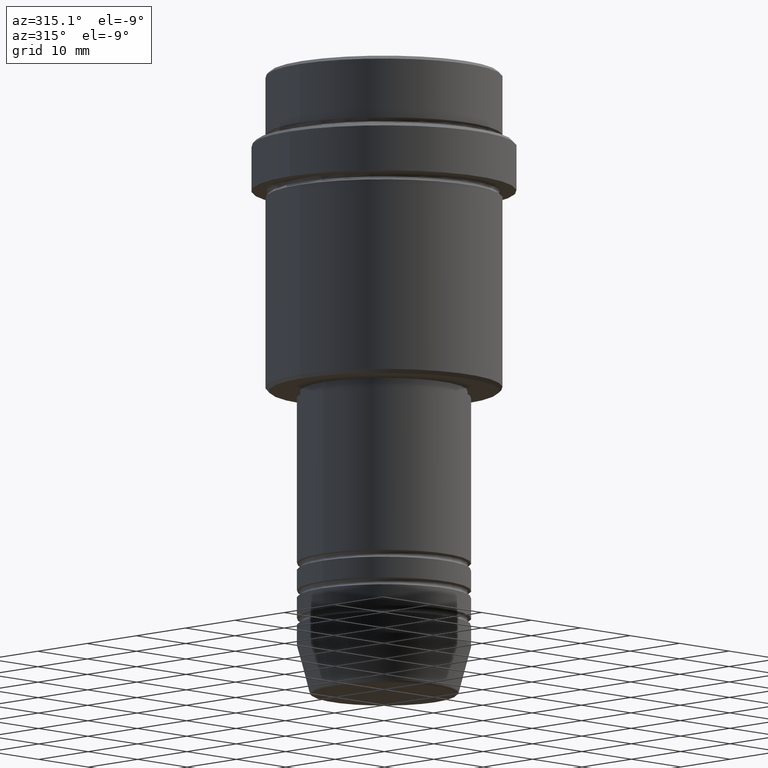
[diagram: clean part render]
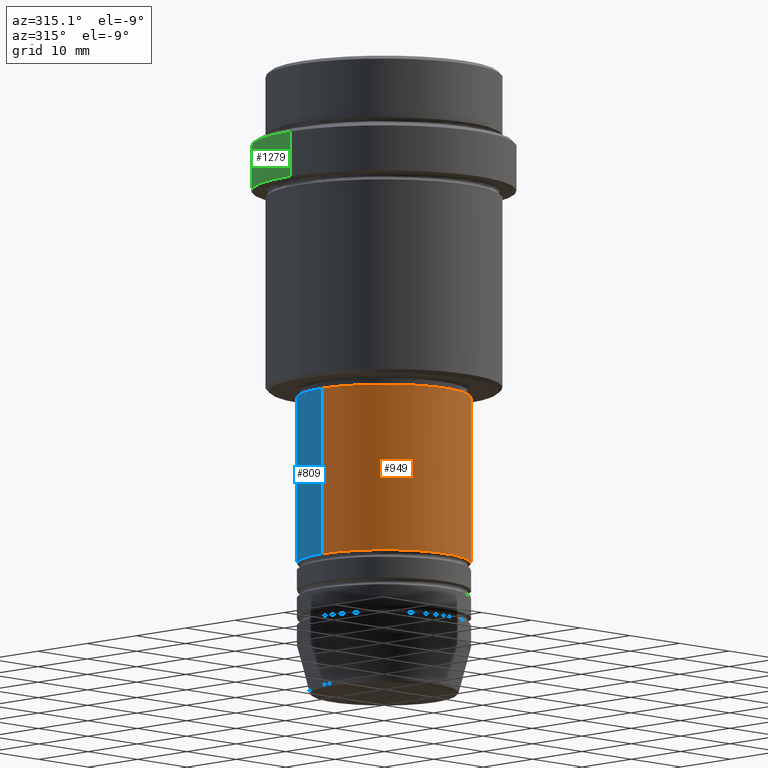
[diagram: same view with three faces highlighted in distinct colors, each labeled with its STEP entity id]
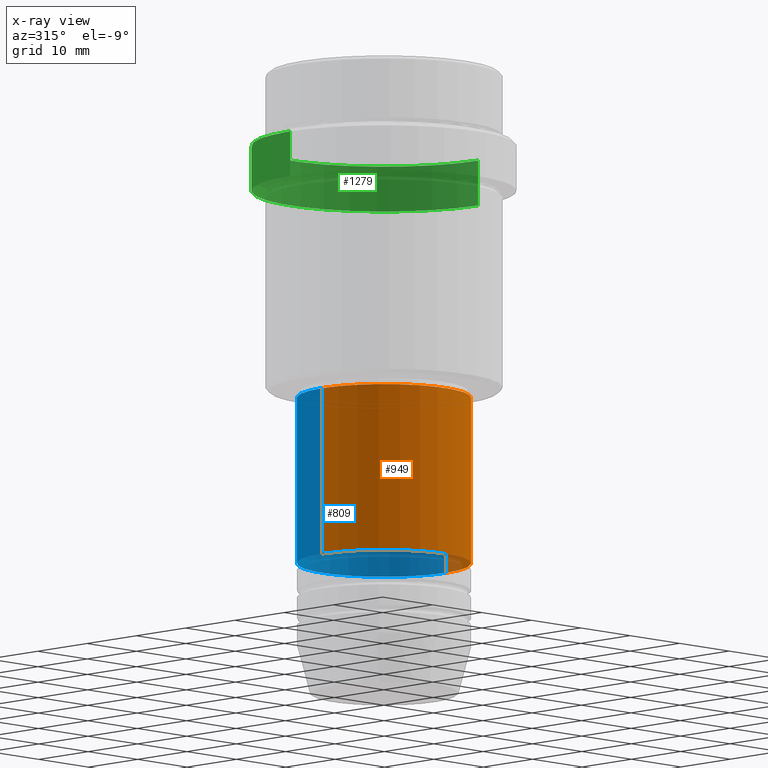
[diagram: x-ray of the same camera — body ghosted, the three highlighted faces saturated]
A machine part, auxiliary view with three faces highlighted in distinct colors.
The next image is the same camera in x-ray (body ghosted, the three faces saturated) — at least one of them is partly hidden behind the body in this view.
Their STEP definitions:

[orange] entity #949 — the highlighted cylindrical surface (partial cylindrical patch) has radius 12.5 mm, axis along (-0, -0, 1).
#62 = DIRECTION ( 'NONE',  ( -0.000000000000000000, -0.000000000000000000, 1.000000000000000000 ) ) ;
#78 = FACE_OUTER_BOUND ( 'NONE', #105, .T. ) ;
#105 = EDGE_LOOP ( 'NONE', ( #1404, #855, #1394, #652 ) ) ;
#187 = AXIS2_PLACEMENT_3D ( 'NONE', #577, #1366, #787 ) ;
#270 = CARTESIAN_POINT ( 'NONE',  ( -12.50000000000000000, 1.530808498934191521E-15, -70.99999999999990052 ) ) ;
#279 = AXIS2_PLACEMENT_3D ( 'NONE', #619, #62, #948 ) ;
#360 = CARTESIAN_POINT ( 'NONE',  ( 12.50000000000000000, 0.000000000000000000, 0.000000000000000000 ) ) ;
#399 = CARTESIAN_POINT ( 'NONE',  ( -12.50000000000000000, 1.530808498934191521E-15, 0.000000000000000000 ) ) ;
#405 = LINE ( 'NONE', #399, #708 ) ;
#491 = DIRECTION ( 'NONE',  ( -0.000000000000000000, -0.000000000000000000, 1.000000000000000000 ) ) ;
#498 = CARTESIAN_POINT ( 'NONE',  ( 0.000000000000000000, 0.000000000000000000, -47.00000000000000000 ) ) ;
#502 = EDGE_CURVE ( 'NONE', #1334, #847, #405, .T. ) ;
#570 = AXIS2_PLACEMENT_3D ( 'NONE', #498, #1154, #1035 ) ;
#577 = CARTESIAN_POINT ( 'NONE',  ( 0.000000000000000000, 0.000000000000000000, -70.99999999999990052 ) ) ;
#586 = VERTEX_POINT ( 'NONE', #891 ) ;
#619 = CARTESIAN_POINT ( 'NONE',  ( 0.000000000000000000, 0.000000000000000000, 0.000000000000000000 ) ) ;
#652 = ORIENTED_EDGE ( 'NONE', *, *, #1003, .F. ) ;
#700 = LINE ( 'NONE', #360, #1173 ) ;
#708 = VECTOR ( 'NONE', #727, 1000.000000000000000 ) ;
#727 = DIRECTION ( 'NONE',  ( -0.000000000000000000, -0.000000000000000000, 1.000000000000000000 ) ) ;
#787 = DIRECTION ( 'NONE',  ( 1.000000000000000000, 0.000000000000000000, 0.000000000000000000 ) ) ;
#847 = VERTEX_POINT ( 'NONE', #1176 ) ;
#855 = ORIENTED_EDGE ( 'NONE', *, *, #1321, .T. ) ;
#891 = CARTESIAN_POINT ( 'NONE',  ( 12.50000000000000000, 0.000000000000000000, -70.99999999999990052 ) ) ;
#948 = DIRECTION ( 'NONE',  ( 1.000000000000000000, 0.000000000000000000, 0.000000000000000000 ) ) ;
#949 = ADVANCED_FACE ( 'NONE', ( #78 ), #1158, .T. ) ;
#1003 = EDGE_CURVE ( 'NONE', #847, #1071, #1081, .T. ) ;
#1035 = DIRECTION ( 'NONE',  ( 1.000000000000000000, 0.000000000000000000, 0.000000000000000000 ) ) ;
#1046 = CARTESIAN_POINT ( 'NONE',  ( 12.50000000000000000, 0.000000000000000000, -47.00000000000000000 ) ) ;
#1071 = VERTEX_POINT ( 'NONE', #1046 ) ;
#1081 = CIRCLE ( 'NONE', #570, 12.50000000000000000 ) ;
#1093 = EDGE_CURVE ( 'NONE', #586, #1071, #700, .T. ) ;
#1154 = DIRECTION ( 'NONE',  ( -0.000000000000000000, -0.000000000000000000, 1.000000000000000000 ) ) ;
#1158 = CYLINDRICAL_SURFACE ( 'NONE', #279, 12.50000000000000000 ) ;
#1173 = VECTOR ( 'NONE', #491, 1000.000000000000000 ) ;
#1176 = CARTESIAN_POINT ( 'NONE',  ( -12.50000000000000000, 1.530808498934191521E-15, -47.00000000000000000 ) ) ;
#1237 = CIRCLE ( 'NONE', #187, 12.50000000000000000 ) ;
#1321 = EDGE_CURVE ( 'NONE', #1334, #586, #1237, .T. ) ;
#1334 = VERTEX_POINT ( 'NONE', #270 ) ;
#1366 = DIRECTION ( 'NONE',  ( -0.000000000000000000, -0.000000000000000000, 1.000000000000000000 ) ) ;
#1394 = ORIENTED_EDGE ( 'NONE', *, *, #1093, .T. ) ;
#1404 = ORIENTED_EDGE ( 'NONE', *, *, #502, .F. ) ;

[blue] entity #809 — the highlighted cylindrical surface (partial cylindrical patch) has radius 12.5 mm, axis along (-0, -0, 1).
#102 = DIRECTION ( 'NONE',  ( 1.000000000000000000, 0.000000000000000000, 0.000000000000000000 ) ) ;
#151 = CARTESIAN_POINT ( 'NONE',  ( 0.000000000000000000, 0.000000000000000000, 0.000000000000000000 ) ) ;
#223 = EDGE_CURVE ( 'NONE', #1071, #847, #1283, .T. ) ;
#270 = CARTESIAN_POINT ( 'NONE',  ( -12.50000000000000000, 1.530808498934191521E-15, -70.99999999999990052 ) ) ;
#332 = CARTESIAN_POINT ( 'NONE',  ( 0.000000000000000000, 0.000000000000000000, -47.00000000000000000 ) ) ;
#360 = CARTESIAN_POINT ( 'NONE',  ( 12.50000000000000000, 0.000000000000000000, 0.000000000000000000 ) ) ;
#363 = CARTESIAN_POINT ( 'NONE',  ( 0.000000000000000000, 0.000000000000000000, -70.99999999999990052 ) ) ;
#371 = AXIS2_PLACEMENT_3D ( 'NONE', #363, #696, #793 ) ;
#386 = DIRECTION ( 'NONE',  ( -0.000000000000000000, -0.000000000000000000, 1.000000000000000000 ) ) ;
#399 = CARTESIAN_POINT ( 'NONE',  ( -12.50000000000000000, 1.530808498934191521E-15, 0.000000000000000000 ) ) ;
#405 = LINE ( 'NONE', #399, #708 ) ;
#429 = EDGE_LOOP ( 'NONE', ( #566, #1131, #690, #626 ) ) ;
#485 = CIRCLE ( 'NONE', #371, 12.50000000000000000 ) ;
#491 = DIRECTION ( 'NONE',  ( -0.000000000000000000, -0.000000000000000000, 1.000000000000000000 ) ) ;
#502 = EDGE_CURVE ( 'NONE', #1334, #847, #405, .T. ) ;
#553 = AXIS2_PLACEMENT_3D ( 'NONE', #151, #386, #1025 ) ;
#566 = ORIENTED_EDGE ( 'NONE', *, *, #735, .T. ) ;
#586 = VERTEX_POINT ( 'NONE', #891 ) ;
#588 = FACE_OUTER_BOUND ( 'NONE', #429, .T. ) ;
#626 = ORIENTED_EDGE ( 'NONE', *, *, #1093, .F. ) ;
#647 = DIRECTION ( 'NONE',  ( -0.000000000000000000, -0.000000000000000000, 1.000000000000000000 ) ) ;
#690 = ORIENTED_EDGE ( 'NONE', *, *, #223, .F. ) ;
#696 = DIRECTION ( 'NONE',  ( -0.000000000000000000, -0.000000000000000000, 1.000000000000000000 ) ) ;
#700 = LINE ( 'NONE', #360, #1173 ) ;
#708 = VECTOR ( 'NONE', #727, 1000.000000000000000 ) ;
#727 = DIRECTION ( 'NONE',  ( -0.000000000000000000, -0.000000000000000000, 1.000000000000000000 ) ) ;
#735 = EDGE_CURVE ( 'NONE', #586, #1334, #485, .T. ) ;
#793 = DIRECTION ( 'NONE',  ( 1.000000000000000000, 0.000000000000000000, 0.000000000000000000 ) ) ;
#809 = ADVANCED_FACE ( 'NONE', ( #588 ), #1005, .T. ) ;
#847 = VERTEX_POINT ( 'NONE', #1176 ) ;
#891 = CARTESIAN_POINT ( 'NONE',  ( 12.50000000000000000, 0.000000000000000000, -70.99999999999990052 ) ) ;
#915 = AXIS2_PLACEMENT_3D ( 'NONE', #332, #647, #102 ) ;
#1005 = CYLINDRICAL_SURFACE ( 'NONE', #553, 12.50000000000000000 ) ;
#1025 = DIRECTION ( 'NONE',  ( 1.000000000000000000, 0.000000000000000000, 0.000000000000000000 ) ) ;
#1046 = CARTESIAN_POINT ( 'NONE',  ( 12.50000000000000000, 0.000000000000000000, -47.00000000000000000 ) ) ;
#1071 = VERTEX_POINT ( 'NONE', #1046 ) ;
#1093 = EDGE_CURVE ( 'NONE', #586, #1071, #700, .T. ) ;
#1131 = ORIENTED_EDGE ( 'NONE', *, *, #502, .T. ) ;
#1173 = VECTOR ( 'NONE', #491, 1000.000000000000000 ) ;
#1176 = CARTESIAN_POINT ( 'NONE',  ( -12.50000000000000000, 1.530808498934191521E-15, -47.00000000000000000 ) ) ;
#1283 = CIRCLE ( 'NONE', #915, 12.50000000000000000 ) ;
#1334 = VERTEX_POINT ( 'NONE', #270 ) ;

[green] entity #1279 — the highlighted cylindrical surface (partial cylindrical patch) has radius 19 mm, axis along (-0, -0, 1).
#41 = VERTEX_POINT ( 'NONE', #625 ) ;
#46 = VECTOR ( 'NONE', #1044, 1000.000000000000000 ) ;
#133 = ORIENTED_EDGE ( 'NONE', *, *, #638, .T. ) ;
#161 = AXIS2_PLACEMENT_3D ( 'NONE', #237, #225, #1089 ) ;
#202 = VERTEX_POINT ( 'NONE', #537 ) ;
#225 = DIRECTION ( 'NONE',  ( -0.000000000000000000, -0.000000000000000000, 1.000000000000000000 ) ) ;
#228 = EDGE_LOOP ( 'NONE', ( #133, #1164, #930, #581 ) ) ;
#237 = CARTESIAN_POINT ( 'NONE',  ( 0.000000000000000000, 0.000000000000000000, 0.000000000000000000 ) ) ;
#253 = DIRECTION ( 'NONE',  ( 0.000000000000000000, 0.000000000000000000, -1.000000000000000000 ) ) ;
#287 = LINE ( 'NONE', #605, #46 ) ;
#315 = CARTESIAN_POINT ( 'NONE',  ( 19.00000000000000000, 0.000000000000000000, -17.00000000000000000 ) ) ;
#351 = DIRECTION ( 'NONE',  ( 1.000000000000000000, 0.000000000000000000, 0.000000000000000000 ) ) ;
#511 = AXIS2_PLACEMENT_3D ( 'NONE', #1013, #253, #691 ) ;
#537 = CARTESIAN_POINT ( 'NONE',  ( 19.00000000000000000, 0.000000000000000000, -10.50000000000001599 ) ) ;
#567 = CARTESIAN_POINT ( 'NONE',  ( -19.00000000000000000, 2.326828918379970970E-15, 0.000000000000000000 ) ) ;
#581 = ORIENTED_EDGE ( 'NONE', *, *, #938, .F. ) ;
#596 = CIRCLE ( 'NONE', #511, 19.00000000000000000 ) ;
#605 = CARTESIAN_POINT ( 'NONE',  ( 19.00000000000000000, 0.000000000000000000, 0.000000000000000000 ) ) ;
#625 = CARTESIAN_POINT ( 'NONE',  ( -19.00000000000000000, 2.326828918379970970E-15, -10.50000000000001599 ) ) ;
#629 = DIRECTION ( 'NONE',  ( -0.000000000000000000, -0.000000000000000000, 1.000000000000000000 ) ) ;
#638 = EDGE_CURVE ( 'NONE', #1240, #1327, #1235, .T. ) ;
#653 = EDGE_CURVE ( 'NONE', #1327, #41, #841, .T. ) ;
#655 = CYLINDRICAL_SURFACE ( 'NONE', #161, 19.00000000000000000 ) ;
#691 = DIRECTION ( 'NONE',  ( 1.000000000000000000, 0.000000000000000000, 0.000000000000000000 ) ) ;
#763 = FACE_OUTER_BOUND ( 'NONE', #228, .T. ) ;
#767 = CARTESIAN_POINT ( 'NONE',  ( 0.000000000000000000, 0.000000000000000000, -17.00000000000000000 ) ) ;
#774 = EDGE_CURVE ( 'NONE', #41, #202, #596, .T. ) ;
#841 = LINE ( 'NONE', #567, #1373 ) ;
#845 = AXIS2_PLACEMENT_3D ( 'NONE', #767, #629, #351 ) ;
#930 = ORIENTED_EDGE ( 'NONE', *, *, #774, .T. ) ;
#938 = EDGE_CURVE ( 'NONE', #1240, #202, #287, .T. ) ;
#1013 = CARTESIAN_POINT ( 'NONE',  ( 0.000000000000000000, 0.000000000000000000, -10.50000000000001599 ) ) ;
#1044 = DIRECTION ( 'NONE',  ( -0.000000000000000000, -0.000000000000000000, 1.000000000000000000 ) ) ;
#1089 = DIRECTION ( 'NONE',  ( 1.000000000000000000, 0.000000000000000000, 0.000000000000000000 ) ) ;
#1121 = CARTESIAN_POINT ( 'NONE',  ( -19.00000000000000000, 2.326828918379970970E-15, -17.00000000000000000 ) ) ;
#1164 = ORIENTED_EDGE ( 'NONE', *, *, #653, .T. ) ;
#1206 = DIRECTION ( 'NONE',  ( -0.000000000000000000, -0.000000000000000000, 1.000000000000000000 ) ) ;
#1235 = CIRCLE ( 'NONE', #845, 19.00000000000000000 ) ;
#1240 = VERTEX_POINT ( 'NONE', #315 ) ;
#1279 = ADVANCED_FACE ( 'NONE', ( #763 ), #655, .T. ) ;
#1327 = VERTEX_POINT ( 'NONE', #1121 ) ;
#1373 = VECTOR ( 'NONE', #1206, 1000.000000000000000 ) ;